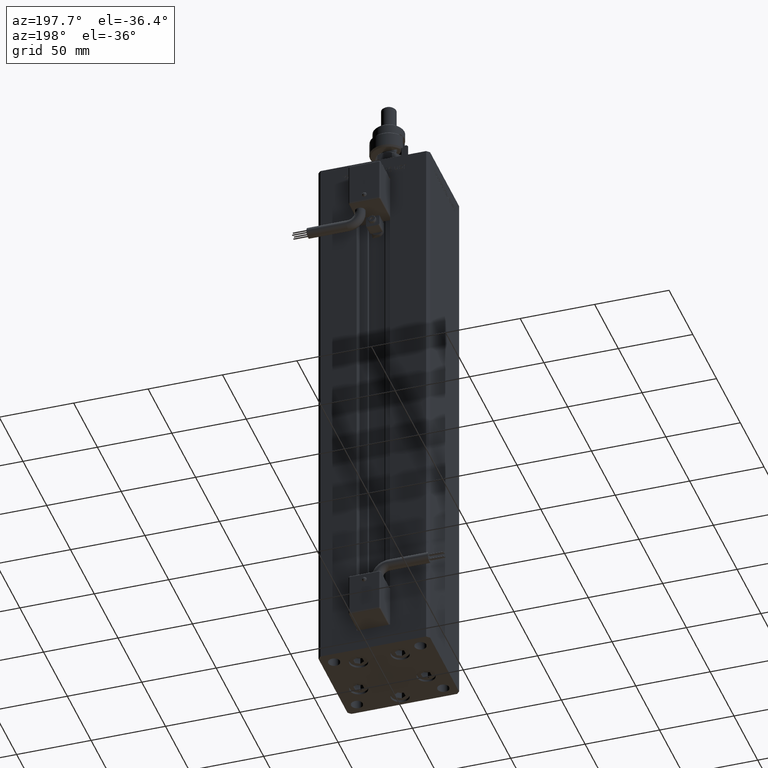
[diagram: clean part render]
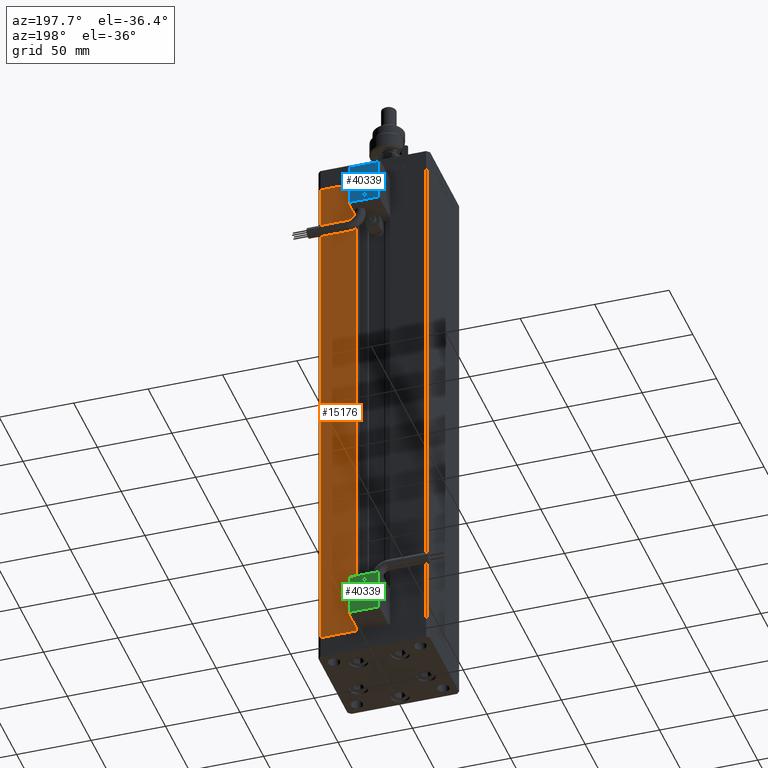
[diagram: same view with three faces highlighted in distinct colors, each labeled with its STEP entity id]
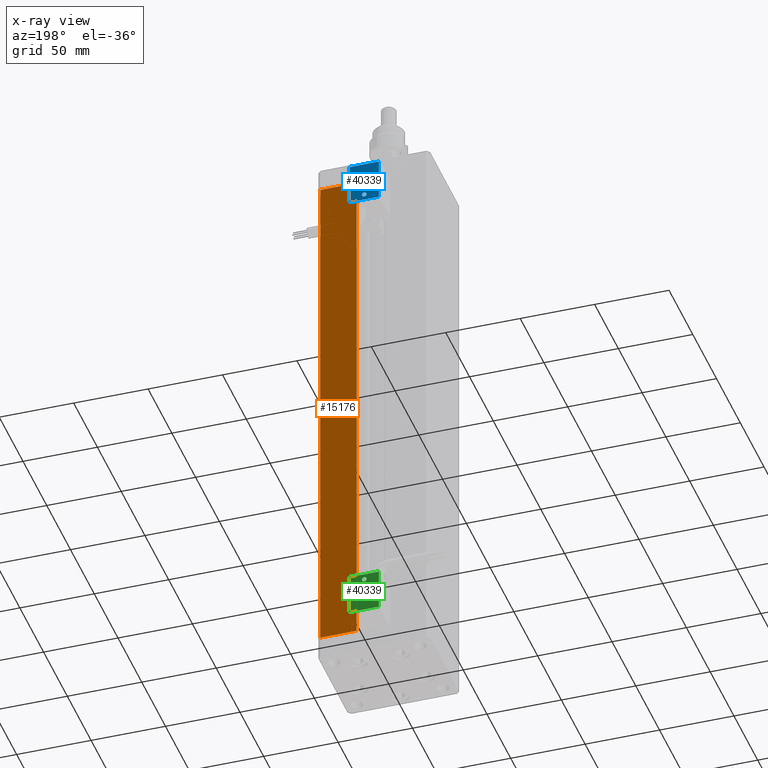
[diagram: x-ray of the same camera — body ghosted, the three highlighted faces saturated]
A machine part, auxiliary view with three faces highlighted in distinct colors.
The next image is the same camera in x-ray (body ghosted, the three faces saturated) — at least one of them is partly hidden behind the body in this view.
Their STEP definitions:

[orange] entity #15176 — the highlighted planar face has unit normal (0, -1, 0).
#83 = VECTOR ( 'NONE', #54059, 1000.000000000000000 ) ;
#571 = PLANE ( 'NONE',  #10241 ) ;
#869 = CARTESIAN_POINT ( 'NONE',  ( -11.25000000000000178, 32.49999999999999289, 356.0000000000000000 ) ) ;
#1203 = VERTEX_POINT ( 'NONE', #42379 ) ;
#4074 = VERTEX_POINT ( 'NONE', #44710 ) ;
#6650 = EDGE_CURVE ( 'NONE', #54857, #4074, #8621, .T. ) ;
#8205 = LINE ( 'NONE', #30041, #17373 ) ;
#8621 = LINE ( 'NONE', #53461, #21194 ) ;
#9198 = DIRECTION ( 'NONE',  ( -1.000000000000000000, 0.000000000000000000, 0.000000000000000000 ) ) ;
#10241 = AXIS2_PLACEMENT_3D ( 'NONE', #869, #31733, #27089 ) ;
#11567 = CARTESIAN_POINT ( 'NONE',  ( 35.50000000000000000, 32.49999999999999289, 356.0000000000000000 ) ) ;
#12225 = CARTESIAN_POINT ( 'NONE',  ( 35.50000000000000000, 32.49999999999999289, 356.0000000000000000 ) ) ;
#13412 = EDGE_CURVE ( 'NONE', #4074, #1203, #36546, .T. ) ;
#13979 = FACE_OUTER_BOUND ( 'NONE', #51779, .T. ) ;
#15176 = ADVANCED_FACE ( 'NONE', ( #13979 ), #571, .F. ) ;
#17373 = VECTOR ( 'NONE', #29466, 1000.000000000000000 ) ;
#21194 = VECTOR ( 'NONE', #9198, 1000.000000000000000 ) ;
#21902 = ORIENTED_EDGE ( 'NONE', *, *, #6650, .T. ) ;
#23934 = VECTOR ( 'NONE', #33959, 1000.000000000000000 ) ;
#24388 = LINE ( 'NONE', #11567, #23934 ) ;
#25262 = ORIENTED_EDGE ( 'NONE', *, *, #13412, .T. ) ;
#27089 = DIRECTION ( 'NONE',  ( 0.000000000000000000, -0.000000000000000000, -1.000000000000000000 ) ) ;
#29466 = DIRECTION ( 'NONE',  ( 1.000000000000000000, 0.000000000000000000, 0.000000000000000000 ) ) ;
#30041 = CARTESIAN_POINT ( 'NONE',  ( -11.25000000000000178, 32.49999999999999289, 356.0000000000000000 ) ) ;
#31733 = DIRECTION ( 'NONE',  ( 0.000000000000000000, -1.000000000000000000, 0.000000000000000000 ) ) ;
#33163 = CARTESIAN_POINT ( 'NONE',  ( 35.50000000000000000, 32.49999999999999289, 0.000000000000000000 ) ) ;
#33959 = DIRECTION ( 'NONE',  ( -0.000000000000000000, -0.000000000000000000, -1.000000000000000000 ) ) ;
#36546 = LINE ( 'NONE', #50238, #83 ) ;
#36563 = VERTEX_POINT ( 'NONE', #12225 ) ;
#42379 = CARTESIAN_POINT ( 'NONE',  ( 11.24999999999999467, 32.49999999999999289, 356.0000000000000000 ) ) ;
#44710 = CARTESIAN_POINT ( 'NONE',  ( 11.25000000000000178, 32.49999999999999289, 0.000000000000000000 ) ) ;
#48964 = EDGE_CURVE ( 'NONE', #1203, #36563, #8205, .T. ) ;
#49114 = ORIENTED_EDGE ( 'NONE', *, *, #48964, .T. ) ;
#49402 = EDGE_CURVE ( 'NONE', #36563, #54857, #24388, .T. ) ;
#50238 = CARTESIAN_POINT ( 'NONE',  ( 11.25000000000000178, 32.49999999999999289, 0.000000000000000000 ) ) ;
#51779 = EDGE_LOOP ( 'NONE', ( #21902, #25262, #49114, #56791 ) ) ;
#53461 = CARTESIAN_POINT ( 'NONE',  ( -11.25000000000000178, 32.49999999999999289, 0.000000000000000000 ) ) ;
#54059 = DIRECTION ( 'NONE',  ( -0.000000000000000000, -0.000000000000000000, 1.000000000000000000 ) ) ;
#54857 = VERTEX_POINT ( 'NONE', #33163 ) ;
#56791 = ORIENTED_EDGE ( 'NONE', *, *, #49402, .T. ) ;

[blue] entity #40339 — the highlighted planar face has unit normal (0, 1, 0).
#222 = EDGE_CURVE ( 'NONE', #25956, #38093, #15677, .T. ) ;
#1476 = VECTOR ( 'NONE', #11300, 1000.000000000000000 ) ;
#4626 = ORIENTED_EDGE ( 'NONE', *, *, #17034, .T. ) ;
#7266 = ORIENTED_EDGE ( 'NONE', *, *, #222, .T. ) ;
#8204 = CARTESIAN_POINT ( 'NONE',  ( 1.157444300081134802E-14, 51.60000000000000142, -51.59426053914221200 ) ) ;
#8879 = EDGE_CURVE ( 'NONE', #10210, #41694, #40874, .T. ) ;
#10210 = VERTEX_POINT ( 'NONE', #24033 ) ;
#11107 = AXIS2_PLACEMENT_3D ( 'NONE', #34312, #43643, #29385 ) ;
#11300 = DIRECTION ( 'NONE',  ( 1.000000000000000000, 0.000000000000000000, 0.000000000000000000 ) ) ;
#12912 = ORIENTED_EDGE ( 'NONE', *, *, #21255, .T. ) ;
#13205 = EDGE_LOOP ( 'NONE', ( #7266, #12912, #4626, #34768 ) ) ;
#13259 = VERTEX_POINT ( 'NONE', #48215 ) ;
#13962 = DIRECTION ( 'NONE',  ( -1.000000000000000000, 0.000000000000000000, 0.000000000000000000 ) ) ;
#14019 = DIRECTION ( 'NONE',  ( 0.000000000000000000, -1.000000000000000000, -2.478176394252581634E-16 ) ) ;
#15677 = LINE ( 'NONE', #42148, #1476 ) ;
#17034 = EDGE_CURVE ( 'NONE', #13259, #18230, #53570, .T. ) ;
#17752 = EDGE_LOOP ( 'NONE', ( #54061, #57395 ) ) ;
#18230 = VERTEX_POINT ( 'NONE', #46183 ) ;
#18380 = DIRECTION ( 'NONE',  ( 0.000000000000000000, 0.000000000000000000, 1.000000000000000000 ) ) ;
#18892 = CIRCLE ( 'NONE', #53309, 1.594260539142210220 ) ;
#20698 = DIRECTION ( 'NONE',  ( 0.000000000000000000, -2.478176394252581634E-16, 1.000000000000000000 ) ) ;
#21255 = EDGE_CURVE ( 'NONE', #38093, #13259, #46742, .T. ) ;
#23154 = CARTESIAN_POINT ( 'NONE',  ( -2.664535259099999904E-33, 51.59999999999998721, 1.277460843040079085E-14 ) ) ;
#24033 = CARTESIAN_POINT ( 'NONE',  ( 1.067120849106190655E-14, 51.60000000000000142, -48.40573946085779511 ) ) ;
#25652 = CARTESIAN_POINT ( 'NONE',  ( -9.799999999999998934, 51.60000000000000142, -54.00000000000000000 ) ) ;
#25956 = VERTEX_POINT ( 'NONE', #55993 ) ;
#27126 = CARTESIAN_POINT ( 'NONE',  ( 1.122044604924999863E-14, 51.60000000000000142, -50.00000000000000000 ) ) ;
#28875 = LINE ( 'NONE', #25652, #35701 ) ;
#29056 = VECTOR ( 'NONE', #33637, 1000.000000000000000 ) ;
#29385 = DIRECTION ( 'NONE',  ( 0.000000000000000000, 0.000000000000000000, 1.000000000000000000 ) ) ;
#31948 = EDGE_CURVE ( 'NONE', #41694, #10210, #18892, .T. ) ;
#33637 = DIRECTION ( 'NONE',  ( 0.000000000000000000, 2.478176394252581634E-16, -1.000000000000000000 ) ) ;
#34312 = CARTESIAN_POINT ( 'NONE',  ( 1.122044604924999863E-14, 51.60000000000000142, -50.00000000000000000 ) ) ;
#34768 = ORIENTED_EDGE ( 'NONE', *, *, #37579, .T. ) ;
#35701 = VECTOR ( 'NONE', #20698, 1000.000000000000000 ) ;
#37579 = EDGE_CURVE ( 'NONE', #18230, #25956, #28875, .T. ) ;
#38093 = VERTEX_POINT ( 'NONE', #45636 ) ;
#40339 = ADVANCED_FACE ( 'NONE', ( #44701, #45270 ), #49357, .T. ) ;
#40874 = CIRCLE ( 'NONE', #11107, 1.594260539142210220 ) ;
#41694 = VERTEX_POINT ( 'NONE', #8204 ) ;
#42148 = CARTESIAN_POINT ( 'NONE',  ( -9.799999999999998934, 51.59999999999999432, -26.00000000000000000 ) ) ;
#43643 = DIRECTION ( 'NONE',  ( 0.000000000000000000, -1.000000000000000000, -2.478176394252581634E-16 ) ) ;
#44701 = FACE_BOUND ( 'NONE', #17752, .T. ) ;
#45270 = FACE_OUTER_BOUND ( 'NONE', #13205, .T. ) ;
#45636 = CARTESIAN_POINT ( 'NONE',  ( 9.799999999999998934, 51.59999999999999432, -26.00000000000000000 ) ) ;
#46183 = CARTESIAN_POINT ( 'NONE',  ( -9.799999999999998934, 51.60000000000000142, -54.00000000000000000 ) ) ;
#46742 = LINE ( 'NONE', #51689, #29056 ) ;
#48215 = CARTESIAN_POINT ( 'NONE',  ( 9.799999999999998934, 51.60000000000000142, -54.00000000000000000 ) ) ;
#48895 = CARTESIAN_POINT ( 'NONE',  ( 9.799999999999998934, 51.60000000000000142, -54.00000000000000000 ) ) ;
#49357 = PLANE ( 'NONE',  #56304 ) ;
#51689 = CARTESIAN_POINT ( 'NONE',  ( 9.799999999999998934, 51.59999999999999432, -26.00000000000000000 ) ) ;
#53309 = AXIS2_PLACEMENT_3D ( 'NONE', #27126, #14019, #18380 ) ;
#53458 = DIRECTION ( 'NONE',  ( 0.000000000000000000, -2.478176394252581634E-16, 1.000000000000000000 ) ) ;
#53570 = LINE ( 'NONE', #48895, #54065 ) ;
#54041 = DIRECTION ( 'NONE',  ( -0.000000000000000000, 1.000000000000000000, 2.478176394252581634E-16 ) ) ;
#54061 = ORIENTED_EDGE ( 'NONE', *, *, #31948, .T. ) ;
#54065 = VECTOR ( 'NONE', #13962, 1000.000000000000000 ) ;
#55993 = CARTESIAN_POINT ( 'NONE',  ( -9.799999999999998934, 51.59999999999999432, -26.00000000000000000 ) ) ;
#56304 = AXIS2_PLACEMENT_3D ( 'NONE', #23154, #54041, #53458 ) ;
#57395 = ORIENTED_EDGE ( 'NONE', *, *, #8879, .T. ) ;

[green] entity #40339 — the highlighted planar face has unit normal (-0, 1, -0).
#222 = EDGE_CURVE ( 'NONE', #25956, #38093, #15677, .T. ) ;
#1476 = VECTOR ( 'NONE', #11300, 1000.000000000000000 ) ;
#4626 = ORIENTED_EDGE ( 'NONE', *, *, #17034, .T. ) ;
#7266 = ORIENTED_EDGE ( 'NONE', *, *, #222, .T. ) ;
#8204 = CARTESIAN_POINT ( 'NONE',  ( 1.157444300081134802E-14, 51.60000000000000142, -51.59426053914221200 ) ) ;
#8879 = EDGE_CURVE ( 'NONE', #10210, #41694, #40874, .T. ) ;
#10210 = VERTEX_POINT ( 'NONE', #24033 ) ;
#11107 = AXIS2_PLACEMENT_3D ( 'NONE', #34312, #43643, #29385 ) ;
#11300 = DIRECTION ( 'NONE',  ( 1.000000000000000000, 0.000000000000000000, 0.000000000000000000 ) ) ;
#12912 = ORIENTED_EDGE ( 'NONE', *, *, #21255, .T. ) ;
#13205 = EDGE_LOOP ( 'NONE', ( #7266, #12912, #4626, #34768 ) ) ;
#13259 = VERTEX_POINT ( 'NONE', #48215 ) ;
#13962 = DIRECTION ( 'NONE',  ( -1.000000000000000000, 0.000000000000000000, 0.000000000000000000 ) ) ;
#14019 = DIRECTION ( 'NONE',  ( 0.000000000000000000, -1.000000000000000000, -2.478176394252581634E-16 ) ) ;
#15677 = LINE ( 'NONE', #42148, #1476 ) ;
#17034 = EDGE_CURVE ( 'NONE', #13259, #18230, #53570, .T. ) ;
#17752 = EDGE_LOOP ( 'NONE', ( #54061, #57395 ) ) ;
#18230 = VERTEX_POINT ( 'NONE', #46183 ) ;
#18380 = DIRECTION ( 'NONE',  ( 0.000000000000000000, 0.000000000000000000, 1.000000000000000000 ) ) ;
#18892 = CIRCLE ( 'NONE', #53309, 1.594260539142210220 ) ;
#20698 = DIRECTION ( 'NONE',  ( 0.000000000000000000, -2.478176394252581634E-16, 1.000000000000000000 ) ) ;
#21255 = EDGE_CURVE ( 'NONE', #38093, #13259, #46742, .T. ) ;
#23154 = CARTESIAN_POINT ( 'NONE',  ( -2.664535259099999904E-33, 51.59999999999998721, 1.277460843040079085E-14 ) ) ;
#24033 = CARTESIAN_POINT ( 'NONE',  ( 1.067120849106190655E-14, 51.60000000000000142, -48.40573946085779511 ) ) ;
#25652 = CARTESIAN_POINT ( 'NONE',  ( -9.799999999999998934, 51.60000000000000142, -54.00000000000000000 ) ) ;
#25956 = VERTEX_POINT ( 'NONE', #55993 ) ;
#27126 = CARTESIAN_POINT ( 'NONE',  ( 1.122044604924999863E-14, 51.60000000000000142, -50.00000000000000000 ) ) ;
#28875 = LINE ( 'NONE', #25652, #35701 ) ;
#29056 = VECTOR ( 'NONE', #33637, 1000.000000000000000 ) ;
#29385 = DIRECTION ( 'NONE',  ( 0.000000000000000000, 0.000000000000000000, 1.000000000000000000 ) ) ;
#31948 = EDGE_CURVE ( 'NONE', #41694, #10210, #18892, .T. ) ;
#33637 = DIRECTION ( 'NONE',  ( 0.000000000000000000, 2.478176394252581634E-16, -1.000000000000000000 ) ) ;
#34312 = CARTESIAN_POINT ( 'NONE',  ( 1.122044604924999863E-14, 51.60000000000000142, -50.00000000000000000 ) ) ;
#34768 = ORIENTED_EDGE ( 'NONE', *, *, #37579, .T. ) ;
#35701 = VECTOR ( 'NONE', #20698, 1000.000000000000000 ) ;
#37579 = EDGE_CURVE ( 'NONE', #18230, #25956, #28875, .T. ) ;
#38093 = VERTEX_POINT ( 'NONE', #45636 ) ;
#40339 = ADVANCED_FACE ( 'NONE', ( #44701, #45270 ), #49357, .T. ) ;
#40874 = CIRCLE ( 'NONE', #11107, 1.594260539142210220 ) ;
#41694 = VERTEX_POINT ( 'NONE', #8204 ) ;
#42148 = CARTESIAN_POINT ( 'NONE',  ( -9.799999999999998934, 51.59999999999999432, -26.00000000000000000 ) ) ;
#43643 = DIRECTION ( 'NONE',  ( 0.000000000000000000, -1.000000000000000000, -2.478176394252581634E-16 ) ) ;
#44701 = FACE_BOUND ( 'NONE', #17752, .T. ) ;
#45270 = FACE_OUTER_BOUND ( 'NONE', #13205, .T. ) ;
#45636 = CARTESIAN_POINT ( 'NONE',  ( 9.799999999999998934, 51.59999999999999432, -26.00000000000000000 ) ) ;
#46183 = CARTESIAN_POINT ( 'NONE',  ( -9.799999999999998934, 51.60000000000000142, -54.00000000000000000 ) ) ;
#46742 = LINE ( 'NONE', #51689, #29056 ) ;
#48215 = CARTESIAN_POINT ( 'NONE',  ( 9.799999999999998934, 51.60000000000000142, -54.00000000000000000 ) ) ;
#48895 = CARTESIAN_POINT ( 'NONE',  ( 9.799999999999998934, 51.60000000000000142, -54.00000000000000000 ) ) ;
#49357 = PLANE ( 'NONE',  #56304 ) ;
#51689 = CARTESIAN_POINT ( 'NONE',  ( 9.799999999999998934, 51.59999999999999432, -26.00000000000000000 ) ) ;
#53309 = AXIS2_PLACEMENT_3D ( 'NONE', #27126, #14019, #18380 ) ;
#53458 = DIRECTION ( 'NONE',  ( 0.000000000000000000, -2.478176394252581634E-16, 1.000000000000000000 ) ) ;
#53570 = LINE ( 'NONE', #48895, #54065 ) ;
#54041 = DIRECTION ( 'NONE',  ( -0.000000000000000000, 1.000000000000000000, 2.478176394252581634E-16 ) ) ;
#54061 = ORIENTED_EDGE ( 'NONE', *, *, #31948, .T. ) ;
#54065 = VECTOR ( 'NONE', #13962, 1000.000000000000000 ) ;
#55993 = CARTESIAN_POINT ( 'NONE',  ( -9.799999999999998934, 51.59999999999999432, -26.00000000000000000 ) ) ;
#56304 = AXIS2_PLACEMENT_3D ( 'NONE', #23154, #54041, #53458 ) ;
#57395 = ORIENTED_EDGE ( 'NONE', *, *, #8879, .T. ) ;